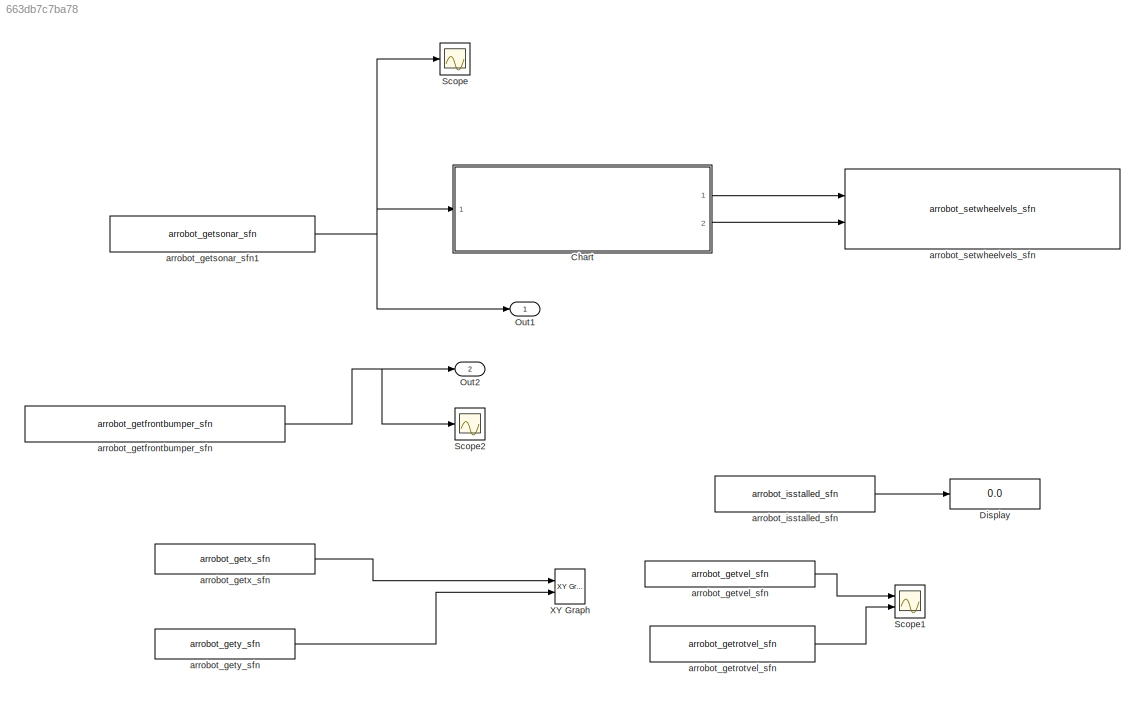
MODEL slx_663db7c7ba78
KIND model
CONFIG StopFcn = arrobot_stop
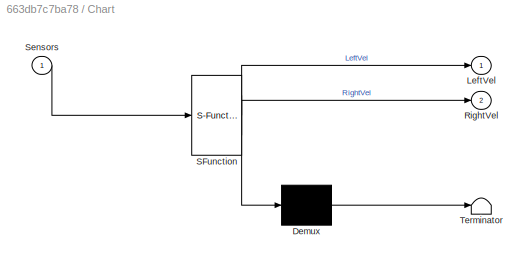
BLOCK [SubSystem] Chart
  ErrorFcn = Stateflow.Translate.translate
  FunctionWithSeparateData = off
  MaskHideContents = off
  MinAlgLoopOccurrences = off
  Opaque = off
  PermitHierarchicalResolution = ExplicitOnly
  Ports = [1, 2]
  PropExecContextOutsideSubsystem = off
  RTWSystemCode = Auto
  RequestExecContextInheritance = off
  SFBlockType = Chart
  TreatAsAtomicUnit = on
BLOCK [Demux] Chart/ Demux 
  Outputs = 1
  Ports = [1, 1]
BLOCK [S-Function] Chart/ SFunction 
  EnableBusSupport = on
  FunctionName = sf_sfun
  PortCounts = [1 3]
  Ports = [1, 3]
  Tag = Stateflow S-Function Simple_wanderer_local 1
BLOCK [Terminator] Chart/ Terminator 
BLOCK [Outport] Chart/LeftVel
  IconDisplay = Port number
BLOCK [Outport] Chart/RightVel
  IconDisplay = Port number
  Port = 2
BLOCK [Inport] Chart/Sensors
  IconDisplay = Port number
BLOCK [Display] Display
  Decimation = 1
  Lockdown = off
  Ports = [1]
BLOCK [Outport] Out1
  IconDisplay = Port number
BLOCK [Outport] Out2
  IconDisplay = Port number
  Port = 2
BLOCK [Scope] Scope
  DataFormat = StructureWithTime
  Floating = off
  NumInputPorts = 1
  Ports = [1]
  SampleTime = 0
  ShowLegends = off
  YMax = 5000
  YMin = 0
BLOCK [Scope] Scope1
  DataFormat = StructureWithTime
  Floating = off
  NumInputPorts = 2
  Ports = [2]
  SampleTime = 0
  SaveName = ScopeData2
  ShowLegends = off
  YMax = 5~5
  YMin = -5~-5
  ZoomMode = yonly
BLOCK [Scope] Scope2
  DataFormat = StructureWithTime
  Floating = off
  NumInputPorts = 1
  Ports = [1]
  SampleTime = 0
  SaveName = ScopeData1
  ShowLegends = off
  YMax = 5000
  YMin = 0
BLOCK [Reference] XY Graph  REF=simulink/Sinks/XY Graph
  Ports = [2]
  SourceBlock = simulink/Sinks/XY Graph
  SourceType = XY scope.
  st = 100
  xmax = 10000
  xmin = -10000
  ymax = 10000
  ymin = -10000
BLOCK [Reference] arrobot_getfrontbumper_sfn  REF=ariac/arrobot_getfrontbumper_sfn
  AttributesFormatString = Get range reading from one front bumper (0-indexed) of mobile robot
  Description = Get range reading from one front bumper (0-indexed) of mobile robot
  Ports = [0, 1]
  SFunctionSpec = int32 y1 = arrobot_get_front_bumper(int32 p1)
  SParameter1 = ones([1 1 ])
  ShowSpec = on
  SourceBlock = ariac/arrobot_getfrontbumper_sfn
  SourceType = Legacy Function
BLOCK [Reference] arrobot_getrotvel_sfn  REF=ariac/arrobot_getrotvel_sfn
  AttributesFormatString = Get current rotational velocity of mobile robot (deg/sec, counterclockwise +)
  Description = Get current rotational velocity of mobile robot (deg/sec, counterclockwise +)
  Ports = [0, 1]
  SFunctionSpec = double y1 = arrobot_getrotvel()
  ShowSpec = on
  SourceBlock = ariac/arrobot_getrotvel_sfn
  SourceType = Legacy Function
BLOCK [Reference] arrobot_getsonar_sfn1  REF=ariac/arrobot_getsonar_sfn
  AttributesFormatString = Get range readings of all front sonar on mobile robot (mm)
  Description = Get range readings of all front sonar on mobile robot (mm)
  Ports = [0, 1]
  SFunctionSpec = void arrobot_getsonar(double y1[16])
  ShowSpec = on
  SourceBlock = ariac/arrobot_getsonar_sfn
  SourceType = Legacy Function
BLOCK [Reference] arrobot_getvel_sfn  REF=ariac/arrobot_getvel_sfn
  AttributesFormatString = Get current forward/back velocity of mobile robot (mm/sec)
  Description = Get current forward/back velocity of mobile robot (mm/sec)
  Ports = [0, 1]
  SFunctionSpec = double y1 = arrobot_getvel()
  ShowSpec = on
  SourceBlock = ariac/arrobot_getvel_sfn
  SourceType = Legacy Function
BLOCK [Reference] arrobot_getx_sfn  REF=ariac/arrobot_getx_sfn
  AttributesFormatString = X position of mobile robot (mm)
  Description = X position of mobile robot (mm)
  Ports = [0, 1]
  SFunctionSpec = double y1 = arrobot_getx()
  ShowSpec = on
  SourceBlock = ariac/arrobot_getx_sfn
  SourceType = Legacy Function
BLOCK [Reference] arrobot_gety_sfn  REF=ariac/arrobot_gety_sfn
  AttributesFormatString = Y position of mobile robot (mm)
  Description = Y position of mobile robot (mm)
  Ports = [0, 1]
  SFunctionSpec = double y1 = arrobot_gety()
  ShowSpec = on
  SourceBlock = ariac/arrobot_gety_sfn
  SourceType = Legacy Function
BLOCK [Reference] arrobot_isstalled_sfn  REF=ariac/arrobot_isstalled_sfn
  AttributesFormatString = Are either motors stalled?
  Description = Are either motors stalled?
  Ports = [0, 1]
  SFunctionSpec = int32 y1 = arrobot_isstalled()
  ShowSpec = on
  SourceBlock = ariac/arrobot_isstalled_sfn
  SourceType = Legacy Function
BLOCK [Reference] arrobot_setwheelvels_sfn  REF=ariac/arrobot_setwheelvels_sfn
  AttributesFormatString = Set left, right wheel velocities separately (mm/sec), overrides vel, rotvel
  Description = Set left, right wheel velocities separately (mm/sec), overrides vel, rotvel
  Ports = [2]
  SFunctionSpec = void arrobot_setwheelvels(double u1, double u2)
  ShowSpec = on
  SourceBlock = ariac/arrobot_setwheelvels_sfn
  SourceType = Legacy Function
LINE Chart:1 -> arrobot_setwheelvels_sfn:1
LINE Chart:2 -> arrobot_setwheelvels_sfn:2
NET arrobot_getfrontbumper_sfn:1 -> Out2:1, Scope2:1
LINE arrobot_getrotvel_sfn:1 -> Scope1:2
NET arrobot_getsonar_sfn1:1 -> Chart:1, Out1:1, Scope:1
LINE arrobot_getvel_sfn:1 -> Scope1:1
LINE arrobot_getx_sfn:1 -> XY Graph:1
LINE arrobot_gety_sfn:1 -> XY Graph:2
LINE arrobot_isstalled_sfn:1 -> Display:1
note: NET lines group one-source signal fan-out (src -> all destinations, sorted); 1:1 wires keep LINE
